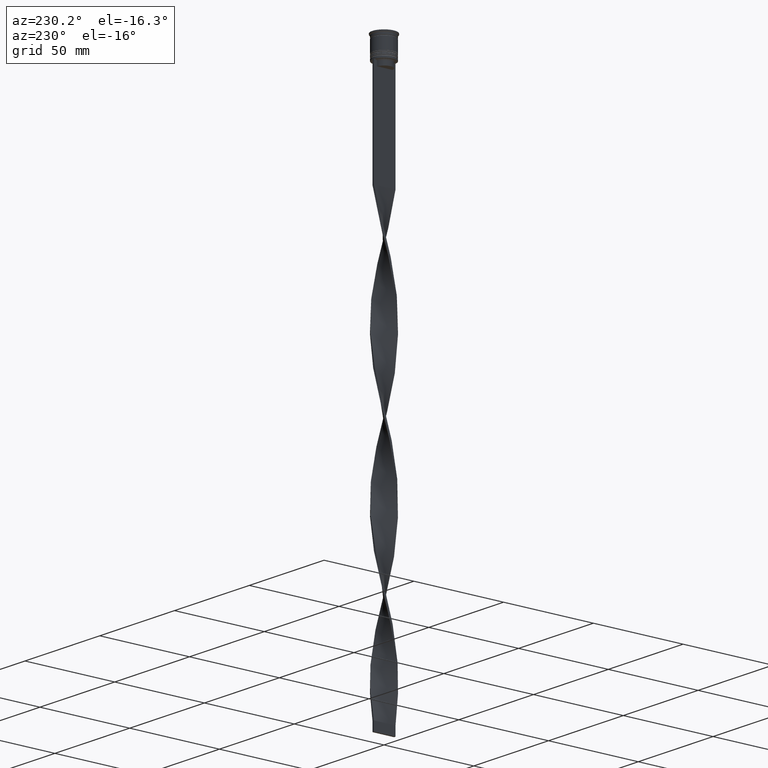
[diagram: clean part render]
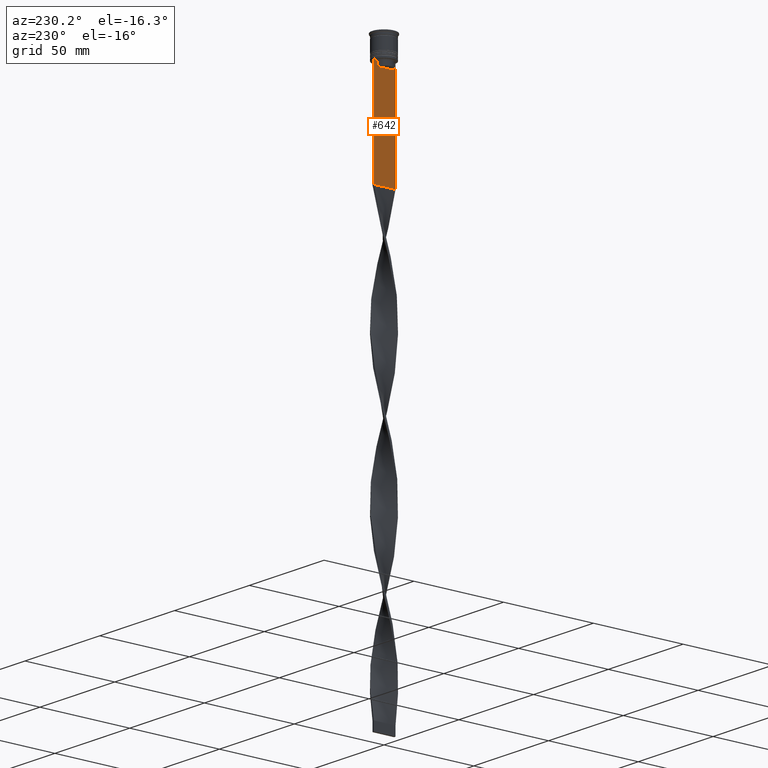
[diagram: same view with one face highlighted and labeled with its STEP entity id]
A machine part, auxiliary view. The second image highlights one B-rep face of the part: STEP entity #642.
In plain terms, the highlighted planar face has unit normal (-1, 0, 0).
Its self-contained STEP definition (entity closure, byte-faithful):
#51 = ORIENTED_EDGE ( 'NONE', *, *, #3291, .F. ) ;
#62 = CARTESIAN_POINT ( 'NONE',  ( -0.4999999999999997780, -6.000000000000000000, -12.50000000000000000 ) ) ;
#66 = EDGE_CURVE ( 'NONE', #2309, #1423, #2701, .T. ) ;
#107 = VERTEX_POINT ( 'NONE', #802 ) ;
#121 = EDGE_CURVE ( 'NONE', #1209, #891, #3615, .T. ) ;
#187 = LINE ( 'NONE', #3322, #262 ) ;
#204 = VERTEX_POINT ( 'NONE', #3314 ) ;
#205 = CARTESIAN_POINT ( 'NONE',  ( -0.4999999999999997780, 4.874423042781576676, -12.50000000000000000 ) ) ;
#222 = EDGE_CURVE ( 'NONE', #273, #2112, #1103, .T. ) ;
#239 = VECTOR ( 'NONE', #1088, 1000.000000000000000 ) ;
#241 = DIRECTION ( 'NONE',  ( 0.000000000000000000, -1.000000000000000000, 0.000000000000000000 ) ) ;
#262 = VECTOR ( 'NONE', #754, 1000.000000000000000 ) ;
#273 = VERTEX_POINT ( 'NONE', #3023 ) ;
#303 = B_SPLINE_CURVE_WITH_KNOTS ( 'NONE', 3,
 ( #2994, #493, #1409, #1757 ),
 .UNSPECIFIED., .F., .F.,
 ( 4, 4 ),
 ( 0.008336552452178418518, 0.009045730124312837891 ),
 .UNSPECIFIED. ) ;
#342 = CARTESIAN_POINT ( 'NONE',  ( -0.4999999999999997780, -4.706831372970964544, -12.66671687695981596 ) ) ;
#346 = DIRECTION ( 'NONE',  ( 0.000000000000000000, -1.000000000000000000, 0.000000000000000000 ) ) ;
#375 = VECTOR ( 'NONE', #241, 1000.000000000000000 ) ;
#418 = ORIENTED_EDGE ( 'NONE', *, *, #222, .T. ) ;
#452 = VECTOR ( 'NONE', #346, 1000.000000000000000 ) ;
#483 = ORIENTED_EDGE ( 'NONE', *, *, #3934, .F. ) ;
#493 = CARTESIAN_POINT ( 'NONE',  ( -0.4999999999999997780, 4.706831415367290106, -12.66671683478478982 ) ) ;
#549 = CARTESIAN_POINT ( 'NONE',  ( -0.4999999999999997780, -6.000000000000000000, -12.50000000000000000 ) ) ;
#609 = EDGE_CURVE ( 'NONE', #204, #2309, #3278, .T. ) ;
#621 = CARTESIAN_POINT ( 'NONE',  ( -0.4999999999999997780, -4.539195586926424220, -12.83338928448044136 ) ) ;
#642 = ADVANCED_FACE ( 'NONE', ( #756 ), #717, .T. ) ;
#717 = PLANE ( 'NONE',  #1889 ) ;
#727 = CARTESIAN_POINT ( 'NONE',  ( -0.4999999999999997780, 6.000000000000000888, -0.4584054212077061097 ) ) ;
#742 = ORIENTED_EDGE ( 'NONE', *, *, #3416, .F. ) ;
#754 = DIRECTION ( 'NONE',  ( 0.000000000000000000, -1.000000000000000000, 0.000000000000000000 ) ) ;
#756 = FACE_OUTER_BOUND ( 'NONE', #3601, .T. ) ;
#802 = CARTESIAN_POINT ( 'NONE',  ( -0.4999999999999997780, 4.371498598878878816, -15.50000000000000000 ) ) ;
#837 = CARTESIAN_POINT ( 'NONE',  ( -0.4999999999999997780, -6.000000000000000000, -68.50000000000000000 ) ) ;
#876 = ORIENTED_EDGE ( 'NONE', *, *, #1713, .F. ) ;
#891 = VERTEX_POINT ( 'NONE', #1131 ) ;
#938 = EDGE_CURVE ( 'NONE', #1563, #2592, #303, .T. ) ;
#984 = DIRECTION ( 'NONE',  ( -1.000000000000000000, 0.000000000000000000, 0.000000000000000000 ) ) ;
#1070 = DIRECTION ( 'NONE',  ( 0.000000000000000000, -1.000000000000000000, 0.000000000000000000 ) ) ;
#1088 = DIRECTION ( 'NONE',  ( -0.000000000000000000, -0.000000000000000000, 1.000000000000000000 ) ) ;
#1103 = LINE ( 'NONE', #727, #3761 ) ;
#1130 = CARTESIAN_POINT ( 'NONE',  ( -0.4999999999999997780, -6.000000000000000000, -0.4584054212077061097 ) ) ;
#1131 = CARTESIAN_POINT ( 'NONE',  ( -0.4999999999999997780, -4.371498598878878816, -13.00000000000000178 ) ) ;
#1153 = LINE ( 'NONE', #1818, #2839 ) ;
#1154 = ORIENTED_EDGE ( 'NONE', *, *, #1788, .F. ) ;
#1209 = VERTEX_POINT ( 'NONE', #2253 ) ;
#1361 = ORIENTED_EDGE ( 'NONE', *, *, #1534, .F. ) ;
#1403 = LINE ( 'NONE', #1425, #3634 ) ;
#1409 = CARTESIAN_POINT ( 'NONE',  ( -0.4999999999999997780, 4.539195634199897356, -12.83338923751318816 ) ) ;
#1415 = VERTEX_POINT ( 'NONE', #3697 ) ;
#1423 = VERTEX_POINT ( 'NONE', #837 ) ;
#1425 = CARTESIAN_POINT ( 'NONE',  ( -0.4999999999999997780, 4.371498598878878816, 0.000000000000000000 ) ) ;
#1433 = VECTOR ( 'NONE', #1070, 1000.000000000000000 ) ;
#1502 = ORIENTED_EDGE ( 'NONE', *, *, #609, .F. ) ;
#1525 = LINE ( 'NONE', #549, #375 ) ;
#1534 = EDGE_CURVE ( 'NONE', #2592, #107, #1403, .T. ) ;
#1563 = VERTEX_POINT ( 'NONE', #205 ) ;
#1623 = CARTESIAN_POINT ( 'NONE',  ( -0.4999999999999997780, -4.874423042781576676, -12.50000000000000000 ) ) ;
#1713 = EDGE_CURVE ( 'NONE', #273, #3848, #1525, .T. ) ;
#1734 = CARTESIAN_POINT ( 'NONE',  ( -0.4999999999999997780, 4.371498598878878816, -13.00000000000000178 ) ) ;
#1752 = DIRECTION ( 'NONE',  ( 0.000000000000000000, 0.000000000000000000, -1.000000000000000000 ) ) ;
#1757 = CARTESIAN_POINT ( 'NONE',  ( -0.4999999999999997780, 4.371498598878878816, -13.00000000000000178 ) ) ;
#1770 = CARTESIAN_POINT ( 'NONE',  ( -0.4999999999999997780, 6.000000000000000888, -68.50000000000000000 ) ) ;
#1788 = EDGE_CURVE ( 'NONE', #1415, #204, #2470, .T. ) ;
#1818 = CARTESIAN_POINT ( 'NONE',  ( -0.4999999999999997780, -6.000000000000000000, -68.50000000000000000 ) ) ;
#1889 = AXIS2_PLACEMENT_3D ( 'NONE', #3549, #984, #3616 ) ;
#2112 = VERTEX_POINT ( 'NONE', #1770 ) ;
#2135 = CARTESIAN_POINT ( 'NONE',  ( -0.4999999999999997780, 5.878775382679627626, -12.50000000000000000 ) ) ;
#2253 = CARTESIAN_POINT ( 'NONE',  ( -0.4999999999999997780, -4.371498598878878816, -15.50000000000000000 ) ) ;
#2309 = VERTEX_POINT ( 'NONE', #2846 ) ;
#2470 = LINE ( 'NONE', #4041, #3974 ) ;
#2489 = ORIENTED_EDGE ( 'NONE', *, *, #938, .F. ) ;
#2592 = VERTEX_POINT ( 'NONE', #1734 ) ;
#2701 = LINE ( 'NONE', #1130, #3553 ) ;
#2839 = VECTOR ( 'NONE', #3467, 1000.000000000000000 ) ;
#2846 = CARTESIAN_POINT ( 'NONE',  ( -0.4999999999999997780, -6.000000000000000000, -12.50000000000000000 ) ) ;
#2994 = CARTESIAN_POINT ( 'NONE',  ( -0.4999999999999997780, 4.874423042781576676, -12.50000000000000000 ) ) ;
#3023 = CARTESIAN_POINT ( 'NONE',  ( -0.4999999999999997780, 6.000000000000001776, -12.50000000000000000 ) ) ;
#3033 = CARTESIAN_POINT ( 'NONE',  ( -0.4999999999999997780, -4.371498598878878816, 0.000000000000000000 ) ) ;
#3109 = ORIENTED_EDGE ( 'NONE', *, *, #66, .F. ) ;
#3139 = ORIENTED_EDGE ( 'NONE', *, *, #3626, .F. ) ;
#3278 = LINE ( 'NONE', #62, #1433 ) ;
#3291 = EDGE_CURVE ( 'NONE', #1423, #2112, #1153, .T. ) ;
#3314 = CARTESIAN_POINT ( 'NONE',  ( -0.4999999999999997780, -5.878775382679627626, -12.50000000000000000 ) ) ;
#3322 = CARTESIAN_POINT ( 'NONE',  ( -0.4999999999999997780, -6.000000000000000000, -12.50000000000000000 ) ) ;
#3416 = EDGE_CURVE ( 'NONE', #107, #1209, #3867, .T. ) ;
#3462 = CARTESIAN_POINT ( 'NONE',  ( -0.4999999999999997780, -4.371498598878878816, -13.00000000000000178 ) ) ;
#3467 = DIRECTION ( 'NONE',  ( 0.000000000000000000, 1.000000000000000000, 0.000000000000000000 ) ) ;
#3549 = CARTESIAN_POINT ( 'NONE',  ( -0.4999999999999997780, -6.000000000000000000, -0.4584054212077061097 ) ) ;
#3553 = VECTOR ( 'NONE', #3640, 1000.000000000000000 ) ;
#3601 = EDGE_LOOP ( 'NONE', ( #2489, #3139, #876, #418, #51, #3109, #1502, #1154, #483, #3859, #742, #1361 ) ) ;
#3615 = LINE ( 'NONE', #3033, #239 ) ;
#3616 = DIRECTION ( 'NONE',  ( 0.000000000000000000, 0.000000000000000000, 1.000000000000000000 ) ) ;
#3626 = EDGE_CURVE ( 'NONE', #3848, #1563, #187, .T. ) ;
#3634 = VECTOR ( 'NONE', #1752, 1000.000000000000000 ) ;
#3640 = DIRECTION ( 'NONE',  ( 0.000000000000000000, 0.000000000000000000, -1.000000000000000000 ) ) ;
#3697 = CARTESIAN_POINT ( 'NONE',  ( -0.4999999999999997780, -4.874423042781576676, -12.50000000000000000 ) ) ;
#3761 = VECTOR ( 'NONE', #3943, 1000.000000000000000 ) ;
#3848 = VERTEX_POINT ( 'NONE', #2135 ) ;
#3859 = ORIENTED_EDGE ( 'NONE', *, *, #121, .F. ) ;
#3867 = LINE ( 'NONE', #3887, #452 ) ;
#3887 = CARTESIAN_POINT ( 'NONE',  ( -0.4999999999999997780, 4.399999999999999467, -15.50000000000000000 ) ) ;
#3934 = EDGE_CURVE ( 'NONE', #891, #1415, #4111, .T. ) ;
#3943 = DIRECTION ( 'NONE',  ( 0.000000000000000000, 0.000000000000000000, -1.000000000000000000 ) ) ;
#3945 = DIRECTION ( 'NONE',  ( 0.000000000000000000, -1.000000000000000000, 0.000000000000000000 ) ) ;
#3974 = VECTOR ( 'NONE', #3945, 1000.000000000000000 ) ;
#4041 = CARTESIAN_POINT ( 'NONE',  ( -0.4999999999999997780, -6.000000000000000000, -12.50000000000000000 ) ) ;
#4111 = B_SPLINE_CURVE_WITH_KNOTS ( 'NONE', 3,
 ( #3462, #621, #342, #1623 ),
 .UNSPECIFIED., .F., .F.,
 ( 4, 4 ),
 ( 0.02089901220910806920, 0.02161421017310284978 ),
 .UNSPECIFIED. ) ;